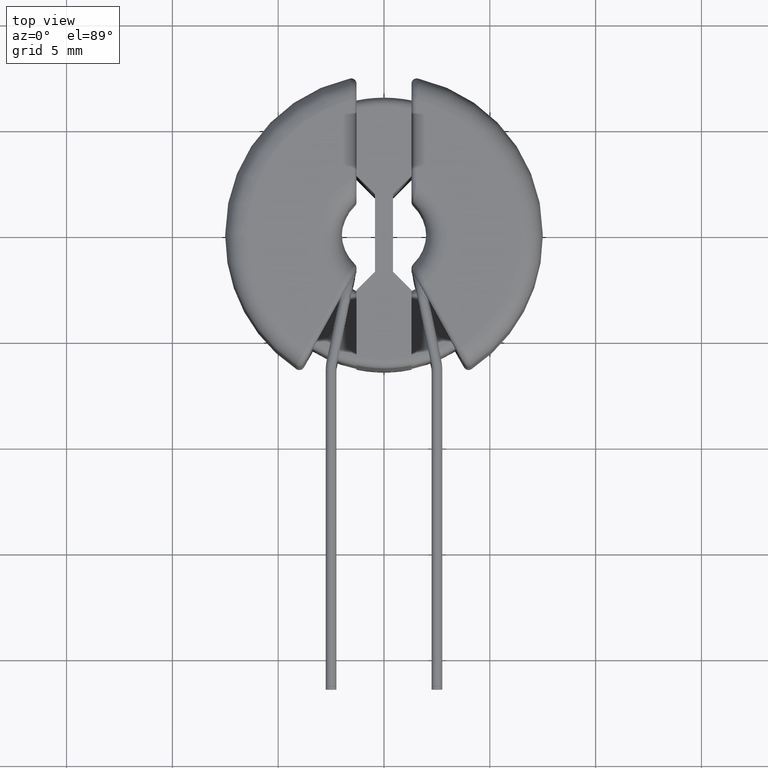
[diagram: clean part render]
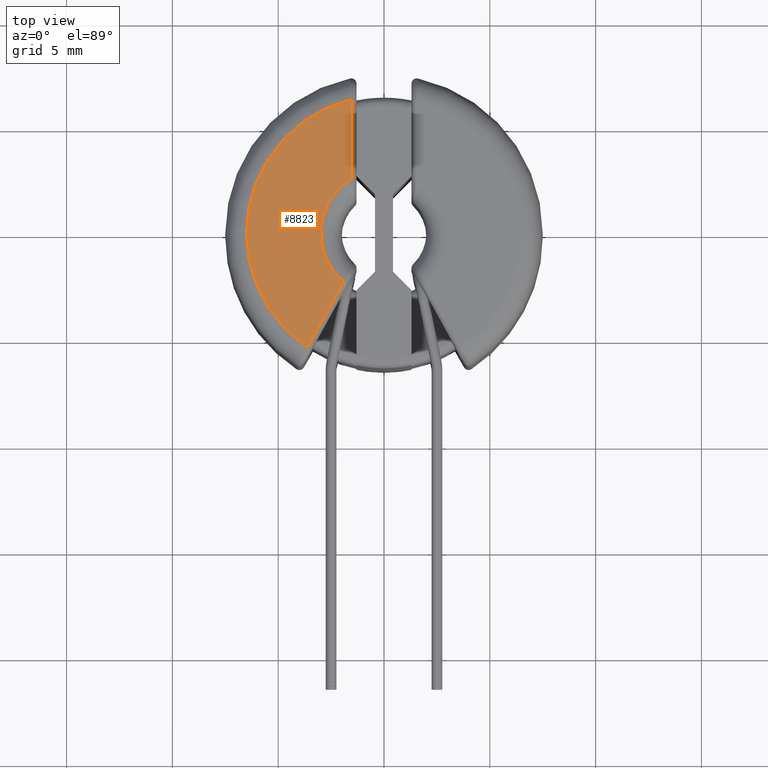
[diagram: same view with one face highlighted and labeled with its STEP entity id]
A machine part, top view. The second image highlights one B-rep face of the part: STEP entity #8823.
In plain terms, the highlighted planar face has unit normal (0, 0, 1).
Its self-contained STEP definition (entity closure, byte-faithful):
#293 = ORIENTED_EDGE ( 'NONE', *, *, #3422, .T. ) ;
#462 = VECTOR ( 'NONE', #9868, 1000.000000000000000 ) ;
#473 = ORIENTED_EDGE ( 'NONE', *, *, #7803, .T. ) ;
#545 = CARTESIAN_POINT ( 'NONE',  ( 0.0000000000000000000, 0.0000000000000000000, 5.450000000000000178 ) ) ;
#999 = CARTESIAN_POINT ( 'NONE',  ( -1.549999999999997602, 6.312487623750244303, 5.450000000000000178 ) ) ;
#1338 = DIRECTION ( 'NONE',  ( 0.4851771749323758320, 0.8744158672649066100, -0.0000000000000000000 ) ) ;
#1345 = AXIS2_PLACEMENT_3D ( 'NONE', #545, #4673, #10459 ) ;
#1491 = FACE_OUTER_BOUND ( 'NONE', #7162, .T. ) ;
#1505 = ORIENTED_EDGE ( 'NONE', *, *, #6289, .T. ) ;
#1976 = VERTEX_POINT ( 'NONE', #3176 ) ;
#2202 = AXIS2_PLACEMENT_3D ( 'NONE', #3281, #4093, #9893 ) ;
#2352 = ORIENTED_EDGE ( 'NONE', *, *, #4632, .T. ) ;
#3109 = CARTESIAN_POINT ( 'NONE',  ( -1.549999999999997602, 2.568559907808265930, 5.450000000000000178 ) ) ;
#3176 = CARTESIAN_POINT ( 'NONE',  ( -1.922783364836486708, -2.302803537410014645, 5.450000000000000178 ) ) ;
#3281 = CARTESIAN_POINT ( 'NONE',  ( 0.0000000000000000000, 0.0000000000000000000, 5.450000000000000178 ) ) ;
#3366 = CARTESIAN_POINT ( 'NONE',  ( -1.549999999999997602, 6.368673331236262669, 5.450000000000000178 ) ) ;
#3422 = EDGE_CURVE ( 'NONE', #1976, #3961, #8342, .T. ) ;
#3604 = PLANE ( 'NONE',  #6354 ) ;
#3961 = VERTEX_POINT ( 'NONE', #3109 ) ;
#4093 = DIRECTION ( 'NONE',  ( 0.0000000000000000000, 0.0000000000000000000, 1.000000000000000000 ) ) ;
#4632 = EDGE_CURVE ( 'NONE', #9074, #1976, #9451, .T. ) ;
#4673 = DIRECTION ( 'NONE',  ( -0.0000000000000000000, -0.0000000000000000000, -1.000000000000000000 ) ) ;
#6272 = CARTESIAN_POINT ( 'NONE',  ( -1.940744058842547970, -2.335173394520828616, 5.450000000000000178 ) ) ;
#6289 = EDGE_CURVE ( 'NONE', #3961, #7722, #6786, .T. ) ;
#6354 = AXIS2_PLACEMENT_3D ( 'NONE', #9348, #9388, #8468 ) ;
#6786 = LINE ( 'NONE', #3366, #462 ) ;
#7162 = EDGE_LOOP ( 'NONE', ( #473, #2352, #293, #1505 ) ) ;
#7245 = VECTOR ( 'NONE', #1338, 1000.000000000000000 ) ;
#7500 = CIRCLE ( 'NONE', #2202, 6.500000000000000000 ) ;
#7722 = VERTEX_POINT ( 'NONE', #999 ) ;
#7803 = EDGE_CURVE ( 'NONE', #7722, #9074, #7500, .T. ) ;
#8342 = CIRCLE ( 'NONE', #1345, 2.999999999999999556 ) ;
#8468 = DIRECTION ( 'NONE',  ( 1.000000000000000000, 0.0000000000000000000, -0.0000000000000000000 ) ) ;
#8823 = ADVANCED_FACE ( 'NONE', ( #1491 ), #3604, .T. ) ;
#8948 = CARTESIAN_POINT ( 'NONE',  ( -3.634965081610503468, -5.388601753281861306, 5.450000000000000178 ) ) ;
#9074 = VERTEX_POINT ( 'NONE', #8948 ) ;
#9348 = CARTESIAN_POINT ( 'NONE',  ( 0.0000000000000000000, 0.0000000000000000000, 5.450000000000000178 ) ) ;
#9388 = DIRECTION ( 'NONE',  ( 0.0000000000000000000, 0.0000000000000000000, 1.000000000000000000 ) ) ;
#9451 = LINE ( 'NONE', #6272, #7245 ) ;
#9868 = DIRECTION ( 'NONE',  ( -1.188155096436700705E-16, 1.000000000000000000, -0.0000000000000000000 ) ) ;
#9893 = DIRECTION ( 'NONE',  ( 1.000000000000000000, 0.0000000000000000000, 0.0000000000000000000 ) ) ;
#10459 = DIRECTION ( 'NONE',  ( 1.000000000000000000, 0.0000000000000000000, 0.0000000000000000000 ) ) ;